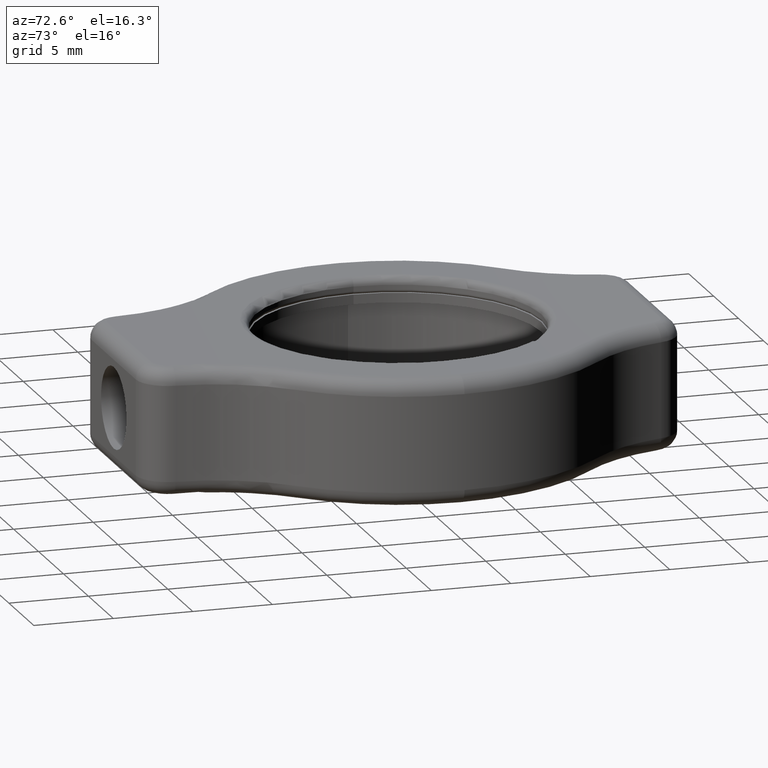
[diagram: clean part render]
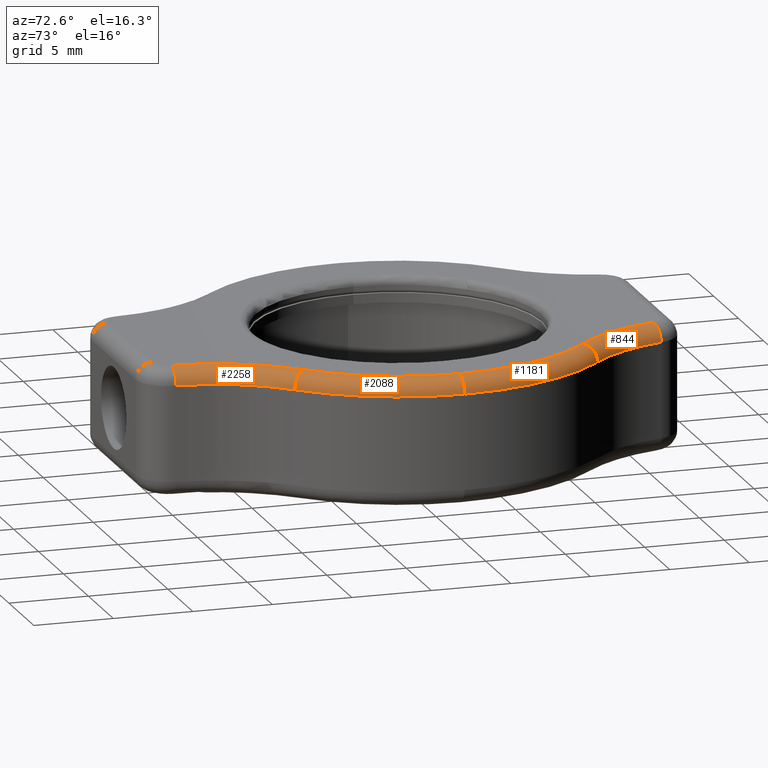
[diagram: same view with one multi-face feature highlighted, each face labeled with its STEP entity id]
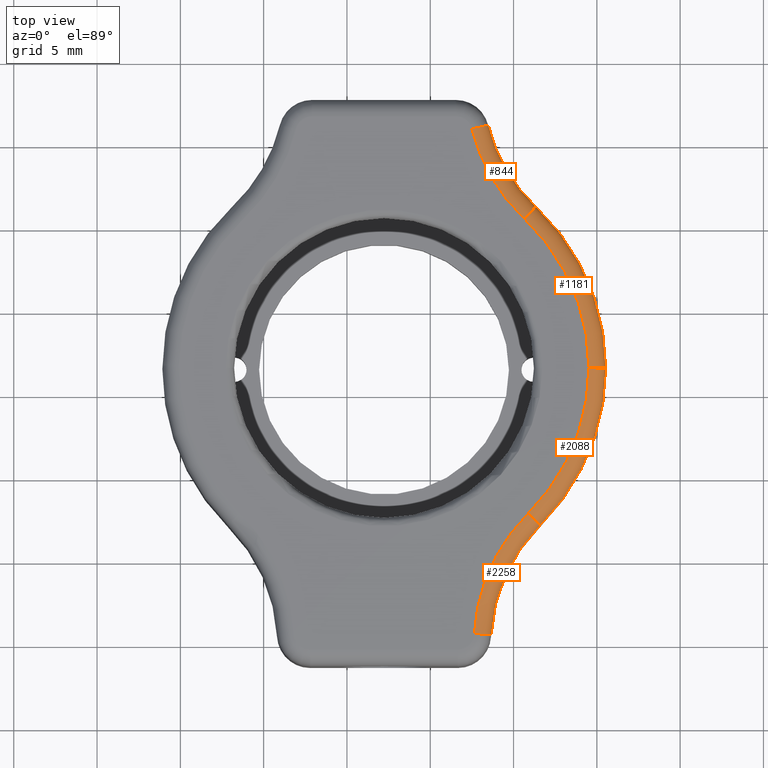
[diagram: same view with one multi-face feature highlighted, each face labeled with its STEP entity id]
A machine part, auxiliary view. The highlighted faces form ONE feature: a constant-radius fillet chain: 4 tangent blend faces with common blend radius 1 mm. The faces share edges in the B-rep.
A second angle (top view) of the same feature is appended — it is thin or edge-on in the first view.
Their STEP definitions:
[1] entity #844 (Torus):
#113 = AXIS2_PLACEMENT_3D ( 'NONE', #1597, #1587, #2104 ) ;
#237 = ORIENTED_EDGE ( 'NONE', *, *, #2115, .F. ) ;
#326 = CARTESIAN_POINT ( 'NONE',  ( 18.18551565834336300, 18.60725635334135900, 38.00000000000000700 ) ) ;
#331 = FACE_OUTER_BOUND ( 'NONE', #2178, .T. ) ;
#337 = VERTEX_POINT ( 'NONE', #1482 ) ;
#391 = CARTESIAN_POINT ( 'NONE',  ( 18.18551565834336300, 18.60725635334135900, 37.00000000000000700 ) ) ;
#418 = CIRCLE ( 'NONE', #113, 9.999999999999998200 ) ;
#437 = VERTEX_POINT ( 'NONE', #1172 ) ;
#516 = VERTEX_POINT ( 'NONE', #1527 ) ;
#543 = ORIENTED_EDGE ( 'NONE', *, *, #2001, .T. ) ;
#694 = AXIS2_PLACEMENT_3D ( 'NONE', #1619, #1604, #1945 ) ;
#749 = CIRCLE ( 'NONE', #694, 1.000000000000000400 ) ;
#825 = AXIS2_PLACEMENT_3D ( 'NONE', #1541, #1348, #1908 ) ;
#844 = ADVANCED_FACE ( 'NONE', ( #331 ), #1111, .T. ) ;
#1017 = AXIS2_PLACEMENT_3D ( 'NONE', #391, #2179, #1104 ) ;
#1104 = DIRECTION ( 'NONE',  ( 1.000000000000000000, 0.0000000000000000000, 0.0000000000000000000 ) ) ;
#1111 = TOROIDAL_SURFACE ( 'NONE', #1017, 11.00000000000000000, 1.000000000000000000 ) ;
#1148 = VERTEX_POINT ( 'NONE', #1561 ) ;
#1158 = CIRCLE ( 'NONE', #825, 1.000000000000000200 ) ;
#1172 = CARTESIAN_POINT ( 'NONE',  ( 7.505629548151975200, 15.97286217756941400, 38.00000000000000700 ) ) ;
#1348 = DIRECTION ( 'NONE',  ( -0.7284928993728578800, 0.6850533523480686300, 0.0000000000000000000 ) ) ;
#1456 = ORIENTED_EDGE ( 'NONE', *, *, #2062, .F. ) ;
#1482 = CARTESIAN_POINT ( 'NONE',  ( 10.64992878251460000, 10.59383446023992400, 38.00000000000000700 ) ) ;
#1527 = CARTESIAN_POINT ( 'NONE',  ( 11.33498213486267000, 11.32232735961278400, 37.00000000000000700 ) ) ;
#1541 = CARTESIAN_POINT ( 'NONE',  ( 10.64992878251460000, 10.59383446023992400, 37.00000000000000700 ) ) ;
#1561 = CARTESIAN_POINT ( 'NONE',  ( 8.476528285442102000, 16.21235255718504200, 37.00000000000000700 ) ) ;
#1573 = DIRECTION ( 'NONE',  ( 1.000000000000000000, -1.892425610156517000E-015, 0.0000000000000000000 ) ) ;
#1587 = DIRECTION ( 'NONE',  ( -0.0000000000000000000, 0.0000000000000000000, 1.000000000000000000 ) ) ;
#1594 = EDGE_CURVE ( 'NONE', #437, #1148, #749, .T. ) ;
#1597 = CARTESIAN_POINT ( 'NONE',  ( 18.18551565834336300, 18.60725635334135900, 37.00000000000000700 ) ) ;
#1604 = DIRECTION ( 'NONE',  ( -0.2394903796156286900, 0.9708987372901265500, 0.0000000000000000000 ) ) ;
#1619 = CARTESIAN_POINT ( 'NONE',  ( 7.505629548151975200, 15.97286217756941400, 37.00000000000000700 ) ) ;
#1729 = DIRECTION ( 'NONE',  ( 0.0000000000000000000, -0.0000000000000000000, -1.000000000000000000 ) ) ;
#1771 = CIRCLE ( 'NONE', #2260, 11.00000000000000000 ) ;
#1908 = DIRECTION ( 'NONE',  ( -0.6850533523480687400, -0.7284928993728579900, 0.0000000000000000000 ) ) ;
#1945 = DIRECTION ( 'NONE',  ( -0.9708987372901265500, -0.2394903796156289400, 0.0000000000000000000 ) ) ;
#2001 = EDGE_CURVE ( 'NONE', #337, #516, #1158, .T. ) ;
#2018 = ORIENTED_EDGE ( 'NONE', *, *, #1594, .F. ) ;
#2062 = EDGE_CURVE ( 'NONE', #1148, #516, #418, .T. ) ;
#2104 = DIRECTION ( 'NONE',  ( 1.000000000000000000, 0.0000000000000000000, 0.0000000000000000000 ) ) ;
#2115 = EDGE_CURVE ( 'NONE', #337, #437, #1771, .T. ) ;
#2178 = EDGE_LOOP ( 'NONE', ( #543, #1456, #2018, #237 ) ) ;
#2179 = DIRECTION ( 'NONE',  ( -0.0000000000000000000, 0.0000000000000000000, 1.000000000000000000 ) ) ;
#2260 = AXIS2_PLACEMENT_3D ( 'NONE', #326, #1729, #1573 ) ;
[2] entity #1181 (Torus):
#316 = EDGE_LOOP ( 'NONE', ( #1068, #1880, #1625, #1539 ) ) ;
#320 = VERTEX_POINT ( 'NONE', #1322 ) ;
#337 = VERTEX_POINT ( 'NONE', #1482 ) ;
#516 = VERTEX_POINT ( 'NONE', #1527 ) ;
#521 = AXIS2_PLACEMENT_3D ( 'NONE', #528, #1239, #711 ) ;
#528 = CARTESIAN_POINT ( 'NONE',  ( 2.223772548633339100, 1.633371797953784300, 37.00000000000000700 ) ) ;
#640 = FACE_OUTER_BOUND ( 'NONE', #316, .T. ) ;
#688 = CARTESIAN_POINT ( 'NONE',  ( 14.52377254863334100, 1.633371797953784300, 38.00000000000000700 ) ) ;
#711 = DIRECTION ( 'NONE',  ( 1.000000000000000000, 0.0000000000000000000, 0.0000000000000000000 ) ) ;
#714 = EDGE_CURVE ( 'NONE', #516, #320, #1164, .T. ) ;
#723 = CARTESIAN_POINT ( 'NONE',  ( 2.223772548633339100, 1.633371797953784300, 37.00000000000000700 ) ) ;
#747 = CIRCLE ( 'NONE', #1698, 1.000000000000000900 ) ;
#825 = AXIS2_PLACEMENT_3D ( 'NONE', #1541, #1348, #1908 ) ;
#839 = TOROIDAL_SURFACE ( 'NONE', #1903, 12.30000000000000200, 1.000000000000000000 ) ;
#863 = DIRECTION ( 'NONE',  ( 0.0000000000000000000, -1.000000000000000000, 0.0000000000000000000 ) ) ;
#1058 = DIRECTION ( 'NONE',  ( 1.000000000000000000, 0.0000000000000000000, 0.0000000000000000000 ) ) ;
#1068 = ORIENTED_EDGE ( 'NONE', *, *, #2139, .F. ) ;
#1069 = DIRECTION ( 'NONE',  ( -0.0000000000000000000, 0.0000000000000000000, 1.000000000000000000 ) ) ;
#1090 = VERTEX_POINT ( 'NONE', #688 ) ;
#1108 = EDGE_CURVE ( 'NONE', #1090, #337, #1215, .T. ) ;
#1158 = CIRCLE ( 'NONE', #825, 1.000000000000000200 ) ;
#1164 = CIRCLE ( 'NONE', #521, 13.30000000000000200 ) ;
#1181 = ADVANCED_FACE ( 'NONE', ( #640 ), #839, .T. ) ;
#1215 = CIRCLE ( 'NONE', #1305, 12.30000000000000200 ) ;
#1239 = DIRECTION ( 'NONE',  ( 0.0000000000000000000, -0.0000000000000000000, -1.000000000000000000 ) ) ;
#1305 = AXIS2_PLACEMENT_3D ( 'NONE', #2082, #2272, #1374 ) ;
#1322 = CARTESIAN_POINT ( 'NONE',  ( 15.52377254863334200, 1.633371797953784300, 37.00000000000000700 ) ) ;
#1348 = DIRECTION ( 'NONE',  ( -0.7284928993728578800, 0.6850533523480686300, 0.0000000000000000000 ) ) ;
#1374 = DIRECTION ( 'NONE',  ( 1.000000000000000000, 0.0000000000000000000, 0.0000000000000000000 ) ) ;
#1482 = CARTESIAN_POINT ( 'NONE',  ( 10.64992878251460000, 10.59383446023992400, 38.00000000000000700 ) ) ;
#1527 = CARTESIAN_POINT ( 'NONE',  ( 11.33498213486267000, 11.32232735961278400, 37.00000000000000700 ) ) ;
#1539 = ORIENTED_EDGE ( 'NONE', *, *, #1108, .F. ) ;
#1541 = CARTESIAN_POINT ( 'NONE',  ( 10.64992878251460000, 10.59383446023992400, 37.00000000000000700 ) ) ;
#1581 = DIRECTION ( 'NONE',  ( 0.0000000000000000000, 0.0000000000000000000, -1.000000000000000000 ) ) ;
#1625 = ORIENTED_EDGE ( 'NONE', *, *, #2001, .F. ) ;
#1698 = AXIS2_PLACEMENT_3D ( 'NONE', #1926, #863, #1581 ) ;
#1880 = ORIENTED_EDGE ( 'NONE', *, *, #714, .F. ) ;
#1903 = AXIS2_PLACEMENT_3D ( 'NONE', #723, #1069, #1058 ) ;
#1908 = DIRECTION ( 'NONE',  ( -0.6850533523480687400, -0.7284928993728579900, 0.0000000000000000000 ) ) ;
#1926 = CARTESIAN_POINT ( 'NONE',  ( 14.52377254863334100, 1.633371797953784300, 37.00000000000000700 ) ) ;
#2001 = EDGE_CURVE ( 'NONE', #337, #516, #1158, .T. ) ;
#2082 = CARTESIAN_POINT ( 'NONE',  ( 2.223772548633339100, 1.633371797953784300, 38.00000000000000700 ) ) ;
#2139 = EDGE_CURVE ( 'NONE', #320, #1090, #747, .T. ) ;
#2272 = DIRECTION ( 'NONE',  ( -0.0000000000000000000, 0.0000000000000000000, 1.000000000000000000 ) ) ;
[3] entity #2088 (Torus):
#2 = DIRECTION ( 'NONE',  ( 1.000000000000000000, 0.0000000000000000000, 0.0000000000000000000 ) ) ;
#3 = FACE_OUTER_BOUND ( 'NONE', #1570, .T. ) ;
#32 = AXIS2_PLACEMENT_3D ( 'NONE', #2244, #627, #1705 ) ;
#320 = VERTEX_POINT ( 'NONE', #1322 ) ;
#442 = EDGE_CURVE ( 'NONE', #962, #2016, #758, .T. ) ;
#598 = EDGE_CURVE ( 'NONE', #320, #2016, #1531, .T. ) ;
#627 = DIRECTION ( 'NONE',  ( 0.7100149647296180000, 0.7041865873900179400, -0.0000000000000000000 ) ) ;
#688 = CARTESIAN_POINT ( 'NONE',  ( 14.52377254863334100, 1.633371797953784300, 38.00000000000000700 ) ) ;
#701 = CARTESIAN_POINT ( 'NONE',  ( 2.223772548633339100, 1.633371797953784300, 37.00000000000000700 ) ) ;
#747 = CIRCLE ( 'NONE', #1698, 1.000000000000000900 ) ;
#757 = AXIS2_PLACEMENT_3D ( 'NONE', #1915, #2095, #2277 ) ;
#758 = CIRCLE ( 'NONE', #32, 1.000000000000000000 ) ;
#863 = DIRECTION ( 'NONE',  ( 0.0000000000000000000, -1.000000000000000000, 0.0000000000000000000 ) ) ;
#876 = DIRECTION ( 'NONE',  ( 1.000000000000000000, 0.0000000000000000000, 0.0000000000000000000 ) ) ;
#892 = CARTESIAN_POINT ( 'NONE',  ( 2.223772548633339100, 1.633371797953784300, 38.00000000000000700 ) ) ;
#907 = ORIENTED_EDGE ( 'NONE', *, *, #442, .T. ) ;
#962 = VERTEX_POINT ( 'NONE', #1683 ) ;
#1054 = DIRECTION ( 'NONE',  ( -0.0000000000000000000, 0.0000000000000000000, 1.000000000000000000 ) ) ;
#1090 = VERTEX_POINT ( 'NONE', #688 ) ;
#1168 = CARTESIAN_POINT ( 'NONE',  ( 11.58945416092057800, -7.809827232950136800, 37.00000000000000700 ) ) ;
#1175 = ORIENTED_EDGE ( 'NONE', *, *, #1653, .F. ) ;
#1228 = ORIENTED_EDGE ( 'NONE', *, *, #598, .F. ) ;
#1322 = CARTESIAN_POINT ( 'NONE',  ( 15.52377254863334200, 1.633371797953784300, 37.00000000000000700 ) ) ;
#1329 = CIRCLE ( 'NONE', #2012, 12.30000000000000200 ) ;
#1531 = CIRCLE ( 'NONE', #757, 13.30000000000000200 ) ;
#1570 = EDGE_LOOP ( 'NONE', ( #1228, #2204, #1175, #907 ) ) ;
#1581 = DIRECTION ( 'NONE',  ( 0.0000000000000000000, 0.0000000000000000000, -1.000000000000000000 ) ) ;
#1653 = EDGE_CURVE ( 'NONE', #962, #1090, #1329, .T. ) ;
#1683 = CARTESIAN_POINT ( 'NONE',  ( 10.88526757353055900, -7.099812268220517800, 38.00000000000000700 ) ) ;
#1698 = AXIS2_PLACEMENT_3D ( 'NONE', #1926, #863, #1581 ) ;
#1705 = DIRECTION ( 'NONE',  ( -0.7041865873900176000, 0.7100149647296183400, 0.0000000000000000000 ) ) ;
#1915 = CARTESIAN_POINT ( 'NONE',  ( 2.223772548633339100, 1.633371797953784300, 37.00000000000000700 ) ) ;
#1926 = CARTESIAN_POINT ( 'NONE',  ( 14.52377254863334100, 1.633371797953784300, 37.00000000000000700 ) ) ;
#1939 = DIRECTION ( 'NONE',  ( -0.0000000000000000000, 0.0000000000000000000, 1.000000000000000000 ) ) ;
#2012 = AXIS2_PLACEMENT_3D ( 'NONE', #892, #1939, #876 ) ;
#2016 = VERTEX_POINT ( 'NONE', #1168 ) ;
#2088 = ADVANCED_FACE ( 'NONE', ( #3 ), #2267, .T. ) ;
#2095 = DIRECTION ( 'NONE',  ( 0.0000000000000000000, -0.0000000000000000000, -1.000000000000000000 ) ) ;
#2139 = EDGE_CURVE ( 'NONE', #320, #1090, #747, .T. ) ;
#2204 = ORIENTED_EDGE ( 'NONE', *, *, #2139, .T. ) ;
#2219 = AXIS2_PLACEMENT_3D ( 'NONE', #701, #1054, #2 ) ;
#2244 = CARTESIAN_POINT ( 'NONE',  ( 10.88526757353055900, -7.099812268220517800, 37.00000000000000700 ) ) ;
#2267 = TOROIDAL_SURFACE ( 'NONE', #2219, 12.30000000000000200, 1.000000000000000000 ) ;
#2277 = DIRECTION ( 'NONE',  ( 1.000000000000000000, 0.0000000000000000000, 0.0000000000000000000 ) ) ;
[4] entity #2258 (Torus):
#32 = AXIS2_PLACEMENT_3D ( 'NONE', #2244, #627, #1705 ) ;
#69 = DIRECTION ( 'NONE',  ( 1.000000000000000000, 0.0000000000000000000, 0.0000000000000000000 ) ) ;
#73 = EDGE_LOOP ( 'NONE', ( #1537, #1198, #462, #1853 ) ) ;
#133 = CARTESIAN_POINT ( 'NONE',  ( 7.647139996683950600, -14.32024059189622800, 37.00000000000000700 ) ) ;
#139 = DIRECTION ( 'NONE',  ( 1.000000000000000000, 0.0000000000000000000, 0.0000000000000000000 ) ) ;
#312 = AXIS2_PLACEMENT_3D ( 'NONE', #1074, #1252, #69 ) ;
#442 = EDGE_CURVE ( 'NONE', #962, #2016, #758, .T. ) ;
#462 = ORIENTED_EDGE ( 'NONE', *, *, #1997, .F. ) ;
#627 = DIRECTION ( 'NONE',  ( 0.7100149647296180000, 0.7041865873900179400, -0.0000000000000000000 ) ) ;
#647 = VERTEX_POINT ( 'NONE', #1740 ) ;
#702 = AXIS2_PLACEMENT_3D ( 'NONE', #133, #1891, #1881 ) ;
#712 = AXIS2_PLACEMENT_3D ( 'NONE', #1749, #1577, #139 ) ;
#758 = CIRCLE ( 'NONE', #32, 1.000000000000000000 ) ;
#777 = DIRECTION ( 'NONE',  ( 0.0000000000000000000, -0.0000000000000000000, -1.000000000000000000 ) ) ;
#933 = VERTEX_POINT ( 'NONE', #1493 ) ;
#962 = VERTEX_POINT ( 'NONE', #1683 ) ;
#1067 = EDGE_CURVE ( 'NONE', #2016, #647, #1307, .T. ) ;
#1074 = CARTESIAN_POINT ( 'NONE',  ( 18.63132003482075700, -14.90997688024631900, 37.00000000000000700 ) ) ;
#1128 = CIRCLE ( 'NONE', #702, 1.000000000000000000 ) ;
#1160 = CIRCLE ( 'NONE', #2060, 11.00000000000000400 ) ;
#1168 = CARTESIAN_POINT ( 'NONE',  ( 11.58945416092057800, -7.809827232950136800, 37.00000000000000700 ) ) ;
#1198 = ORIENTED_EDGE ( 'NONE', *, *, #1415, .F. ) ;
#1206 = FACE_OUTER_BOUND ( 'NONE', #73, .T. ) ;
#1252 = DIRECTION ( 'NONE',  ( -0.0000000000000000000, 0.0000000000000000000, 1.000000000000000000 ) ) ;
#1307 = CIRCLE ( 'NONE', #712, 10.00000000000000200 ) ;
#1415 = EDGE_CURVE ( 'NONE', #933, #962, #1160, .T. ) ;
#1493 = CARTESIAN_POINT ( 'NONE',  ( 7.647139996683949700, -14.32024059189622800, 38.00000000000000700 ) ) ;
#1537 = ORIENTED_EDGE ( 'NONE', *, *, #442, .F. ) ;
#1577 = DIRECTION ( 'NONE',  ( -0.0000000000000000000, 0.0000000000000000000, 1.000000000000000000 ) ) ;
#1670 = CARTESIAN_POINT ( 'NONE',  ( 18.63132003482075700, -14.90997688024631900, 38.00000000000000700 ) ) ;
#1683 = CARTESIAN_POINT ( 'NONE',  ( 10.88526757353055900, -7.099812268220517800, 38.00000000000000700 ) ) ;
#1705 = DIRECTION ( 'NONE',  ( -0.7041865873900176000, 0.7100149647296183400, 0.0000000000000000000 ) ) ;
#1740 = CARTESIAN_POINT ( 'NONE',  ( 8.645701818332751600, -14.37385298174623600, 37.00000000000000700 ) ) ;
#1749 = CARTESIAN_POINT ( 'NONE',  ( 18.63132003482075700, -14.90997688024631900, 37.00000000000000700 ) ) ;
#1853 = ORIENTED_EDGE ( 'NONE', *, *, #1067, .F. ) ;
#1860 = TOROIDAL_SURFACE ( 'NONE', #312, 11.00000000000000400, 1.000000000000000000 ) ;
#1881 = DIRECTION ( 'NONE',  ( 0.9985618216488004700, -0.05361238985000793500, 0.0000000000000000000 ) ) ;
#1891 = DIRECTION ( 'NONE',  ( -0.05361238985000794200, -0.9985618216488005800, 0.0000000000000000000 ) ) ;
#1997 = EDGE_CURVE ( 'NONE', #647, #933, #1128, .T. ) ;
#2016 = VERTEX_POINT ( 'NONE', #1168 ) ;
#2060 = AXIS2_PLACEMENT_3D ( 'NONE', #1670, #777, #2212 ) ;
#2212 = DIRECTION ( 'NONE',  ( 1.000000000000000000, 0.0000000000000000000, 0.0000000000000000000 ) ) ;
#2244 = CARTESIAN_POINT ( 'NONE',  ( 10.88526757353055900, -7.099812268220517800, 37.00000000000000700 ) ) ;
#2258 = ADVANCED_FACE ( 'NONE', ( #1206 ), #1860, .T. ) ;